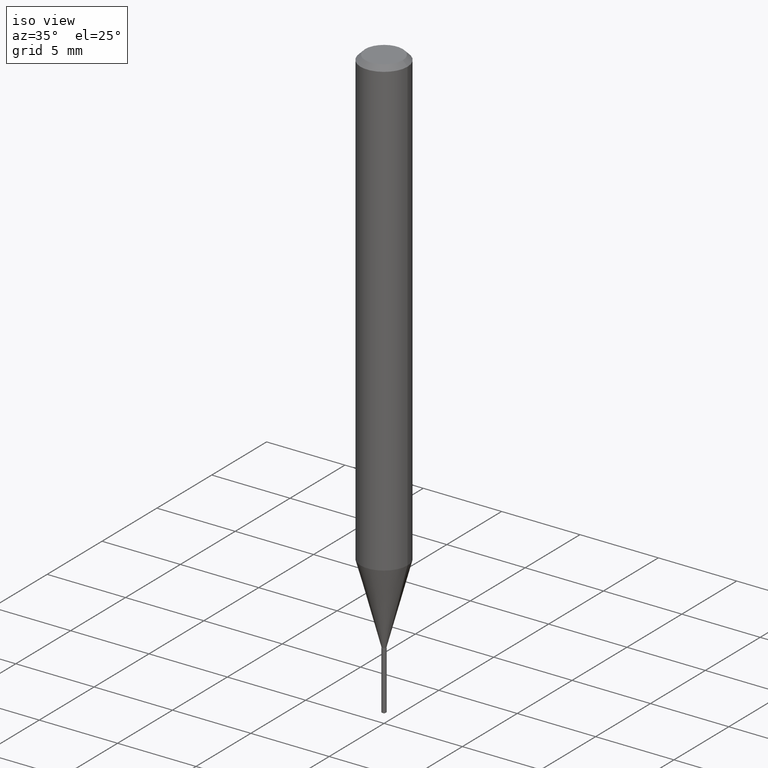
[diagram: clean part render]
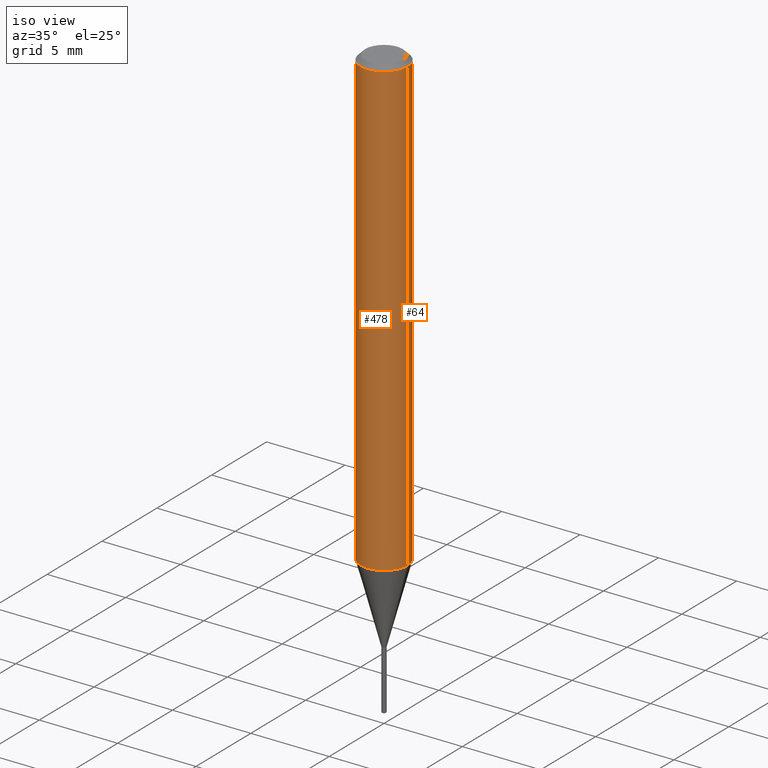
[diagram: same view with one multi-face feature highlighted, each face labeled with its STEP entity id]
A machine part, iso view. The highlighted faces form ONE feature: a constant-radius fillet chain: 2 tangent blend faces with common blend radius 1.4999 mm. The faces share edges in the B-rep.
Their STEP definitions:
[1] entity #64 (Cylinder):
#6 = VECTOR ( 'NONE', #90, 39.37007874015748143 ) ;
#43 = VERTEX_POINT ( 'NONE', #94 ) ;
#49 = CARTESIAN_POINT ( 'NONE',  ( 0.05905000000000006771, -4.123439461173745257E-16, 2.879382386107503723E-30 ) ) ;
#54 = CARTESIAN_POINT ( 'NONE',  ( 0.000000000000000000, 0.000000000000000000, 0.000000000000000000 ) ) ;
#64 = ADVANCED_FACE ( 'NONE', ( #441 ), #240, .T. ) ;
#71 = VERTEX_POINT ( 'NONE', #359 ) ;
#74 = EDGE_LOOP ( 'NONE', ( #235, #296, #188, #374 ) ) ;
#90 = DIRECTION ( 'NONE',  ( -2.445468806185136877E-29, 3.491481338843145188E-15, 1.000000000000000000 ) ) ;
#94 = CARTESIAN_POINT ( 'NONE',  ( 0.05905000000000013710, -4.407653964652056153E-15, -1.144302269093172786 ) ) ;
#102 = CIRCLE ( 'NONE', #299, 0.05904999999999999832 ) ;
#118 = DIRECTION ( 'NONE',  ( -2.445468806185136877E-29, 3.491481338843145188E-15, 1.000000000000000000 ) ) ;
#121 = CIRCLE ( 'NONE', #201, 0.05905000000000013710 ) ;
#150 = DIRECTION ( 'NONE',  ( -2.445468806185136597E-29, 3.491481338843145583E-15, 1.000000000000000000 ) ) ;
#153 = VERTEX_POINT ( 'NONE', #232 ) ;
#188 = ORIENTED_EDGE ( 'NONE', *, *, #222, .F. ) ;
#201 = AXIS2_PLACEMENT_3D ( 'NONE', #357, #318, #434 ) ;
#222 = EDGE_CURVE ( 'NONE', #71, #423, #102, .T. ) ;
#230 = EDGE_CURVE ( 'NONE', #153, #423, #298, .T. ) ;
#232 = CARTESIAN_POINT ( 'NONE',  ( -0.05905000000000013710, -3.575734533068340951E-15, -1.144302269093172786 ) ) ;
#235 = ORIENTED_EDGE ( 'NONE', *, *, #294, .T. ) ;
#240 = CYLINDRICAL_SURFACE ( 'NONE', #401, 0.05905000000000006771 ) ;
#241 = LINE ( 'NONE', #49, #468 ) ;
#257 = CARTESIAN_POINT ( 'NONE',  ( 2.888098660104663766E-31, -4.123439461173779647E-17, -0.01181000000000007044 ) ) ;
#265 = EDGE_CURVE ( 'NONE', #43, #71, #241, .T. ) ;
#275 = DIRECTION ( 'NONE',  ( 1.000000000000000000, -6.982962677686266711E-15, 4.876176775795936353E-29 ) ) ;
#294 = EDGE_CURVE ( 'NONE', #43, #153, #121, .T. ) ;
#296 = ORIENTED_EDGE ( 'NONE', *, *, #230, .T. ) ;
#298 = LINE ( 'NONE', #414, #6 ) ;
#299 = AXIS2_PLACEMENT_3D ( 'NONE', #257, #150, #306 ) ;
#306 = DIRECTION ( 'NONE',  ( 1.000000000000000000, -6.982962677686266711E-15, 0.000000000000000000 ) ) ;
#318 = DIRECTION ( 'NONE',  ( -2.445468806185136597E-29, 3.491481338843145583E-15, 1.000000000000000000 ) ) ;
#357 = CARTESIAN_POINT ( 'NONE',  ( 2.798355503914224078E-29, -3.995310018534680444E-15, -1.144302269093172786 ) ) ;
#359 = CARTESIAN_POINT ( 'NONE',  ( 0.05904999999999999832, -4.535783407291118600E-16, -0.01181000000000007044 ) ) ;
#374 = ORIENTED_EDGE ( 'NONE', *, *, #265, .F. ) ;
#399 = DIRECTION ( 'NONE',  ( -2.445468806185136597E-29, 3.491481338843145583E-15, 1.000000000000000000 ) ) ;
#401 = AXIS2_PLACEMENT_3D ( 'NONE', #54, #399, #275 ) ;
#414 = CARTESIAN_POINT ( 'NONE',  ( -0.05905000000000006771, 4.195754854663396409E-16, -2.904631170795525045E-30 ) ) ;
#423 = VERTEX_POINT ( 'NONE', #447 ) ;
#434 = DIRECTION ( 'NONE',  ( 1.000000000000000000, -6.982962677686264344E-15, 0.000000000000000000 ) ) ;
#441 = FACE_OUTER_BOUND ( 'NONE', #74, .T. ) ;
#447 = CARTESIAN_POINT ( 'NONE',  ( -0.05904999999999999832, -1.598696721106868410E-15, -0.01181000000000007044 ) ) ;
#468 = VECTOR ( 'NONE', #118, 39.37007874015748143 ) ;
[2] entity #478 (Cylinder):
#3 = ORIENTED_EDGE ( 'NONE', *, *, #230, .F. ) ;
#6 = VECTOR ( 'NONE', #90, 39.37007874015748143 ) ;
#30 = EDGE_CURVE ( 'NONE', #153, #43, #200, .T. ) ;
#43 = VERTEX_POINT ( 'NONE', #94 ) ;
#49 = CARTESIAN_POINT ( 'NONE',  ( 0.05905000000000006771, -4.123439461173745257E-16, 2.879382386107503723E-30 ) ) ;
#61 = CARTESIAN_POINT ( 'NONE',  ( 0.000000000000000000, 0.000000000000000000, 0.000000000000000000 ) ) ;
#71 = VERTEX_POINT ( 'NONE', #359 ) ;
#90 = DIRECTION ( 'NONE',  ( -2.445468806185136877E-29, 3.491481338843145188E-15, 1.000000000000000000 ) ) ;
#94 = CARTESIAN_POINT ( 'NONE',  ( 0.05905000000000013710, -4.407653964652056153E-15, -1.144302269093172786 ) ) ;
#118 = DIRECTION ( 'NONE',  ( -2.445468806185136877E-29, 3.491481338843145188E-15, 1.000000000000000000 ) ) ;
#132 = DIRECTION ( 'NONE',  ( -2.445468806185136597E-29, 3.491481338843145583E-15, 1.000000000000000000 ) ) ;
#141 = CIRCLE ( 'NONE', #428, 0.05904999999999999832 ) ;
#143 = AXIS2_PLACEMENT_3D ( 'NONE', #61, #208, #363 ) ;
#153 = VERTEX_POINT ( 'NONE', #232 ) ;
#192 = ORIENTED_EDGE ( 'NONE', *, *, #265, .T. ) ;
#200 = CIRCLE ( 'NONE', #330, 0.05905000000000013710 ) ;
#203 = DIRECTION ( 'NONE',  ( -2.445468806185136597E-29, 3.491481338843145583E-15, 1.000000000000000000 ) ) ;
#208 = DIRECTION ( 'NONE',  ( -2.445468806185136597E-29, 3.491481338843145583E-15, 1.000000000000000000 ) ) ;
#230 = EDGE_CURVE ( 'NONE', #153, #423, #298, .T. ) ;
#232 = CARTESIAN_POINT ( 'NONE',  ( -0.05905000000000013710, -3.575734533068340951E-15, -1.144302269093172786 ) ) ;
#241 = LINE ( 'NONE', #49, #468 ) ;
#243 = CARTESIAN_POINT ( 'NONE',  ( 2.888098660104663766E-31, -4.123439461173779647E-17, -0.01181000000000007044 ) ) ;
#265 = EDGE_CURVE ( 'NONE', #43, #71, #241, .T. ) ;
#272 = DIRECTION ( 'NONE',  ( 1.000000000000000000, -6.982962677686266711E-15, 0.000000000000000000 ) ) ;
#287 = EDGE_CURVE ( 'NONE', #423, #71, #141, .T. ) ;
#295 = CYLINDRICAL_SURFACE ( 'NONE', #143, 0.05905000000000006771 ) ;
#298 = LINE ( 'NONE', #414, #6 ) ;
#310 = ORIENTED_EDGE ( 'NONE', *, *, #30, .T. ) ;
#317 = CARTESIAN_POINT ( 'NONE',  ( 2.798355503914224078E-29, -3.995310018534680444E-15, -1.144302269093172786 ) ) ;
#323 = DIRECTION ( 'NONE',  ( 1.000000000000000000, -6.982962677686264344E-15, 0.000000000000000000 ) ) ;
#330 = AXIS2_PLACEMENT_3D ( 'NONE', #317, #132, #323 ) ;
#359 = CARTESIAN_POINT ( 'NONE',  ( 0.05904999999999999832, -4.535783407291118600E-16, -0.01181000000000007044 ) ) ;
#363 = DIRECTION ( 'NONE',  ( 1.000000000000000000, -6.982962677686266711E-15, 4.876176775795936353E-29 ) ) ;
#377 = ORIENTED_EDGE ( 'NONE', *, *, #287, .F. ) ;
#407 = FACE_OUTER_BOUND ( 'NONE', #408, .T. ) ;
#408 = EDGE_LOOP ( 'NONE', ( #3, #310, #192, #377 ) ) ;
#414 = CARTESIAN_POINT ( 'NONE',  ( -0.05905000000000006771, 4.195754854663396409E-16, -2.904631170795525045E-30 ) ) ;
#423 = VERTEX_POINT ( 'NONE', #447 ) ;
#428 = AXIS2_PLACEMENT_3D ( 'NONE', #243, #203, #272 ) ;
#447 = CARTESIAN_POINT ( 'NONE',  ( -0.05904999999999999832, -1.598696721106868410E-15, -0.01181000000000007044 ) ) ;
#468 = VECTOR ( 'NONE', #118, 39.37007874015748143 ) ;
#478 = ADVANCED_FACE ( 'NONE', ( #407 ), #295, .T. ) ;